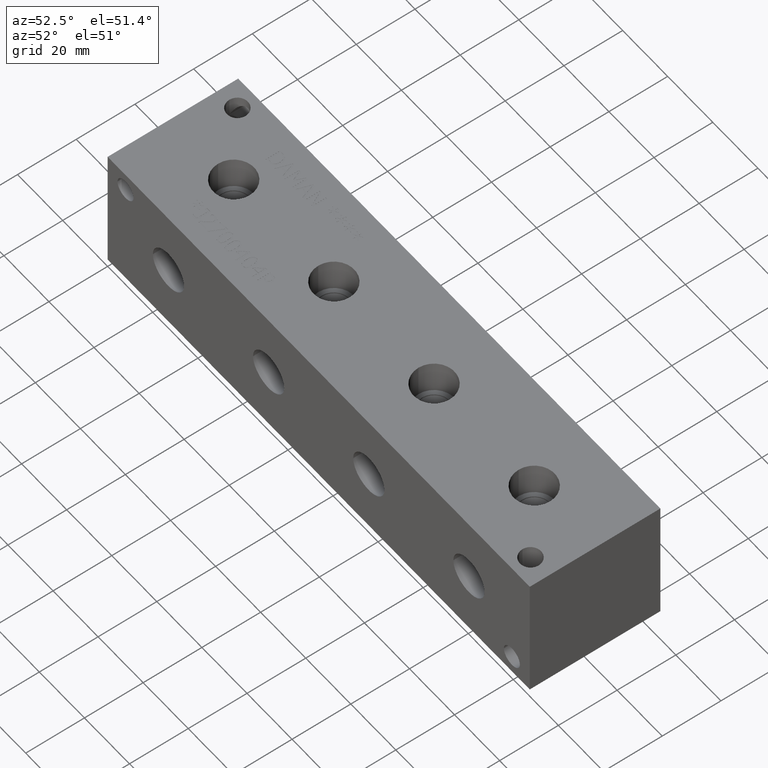
[diagram: clean part render]
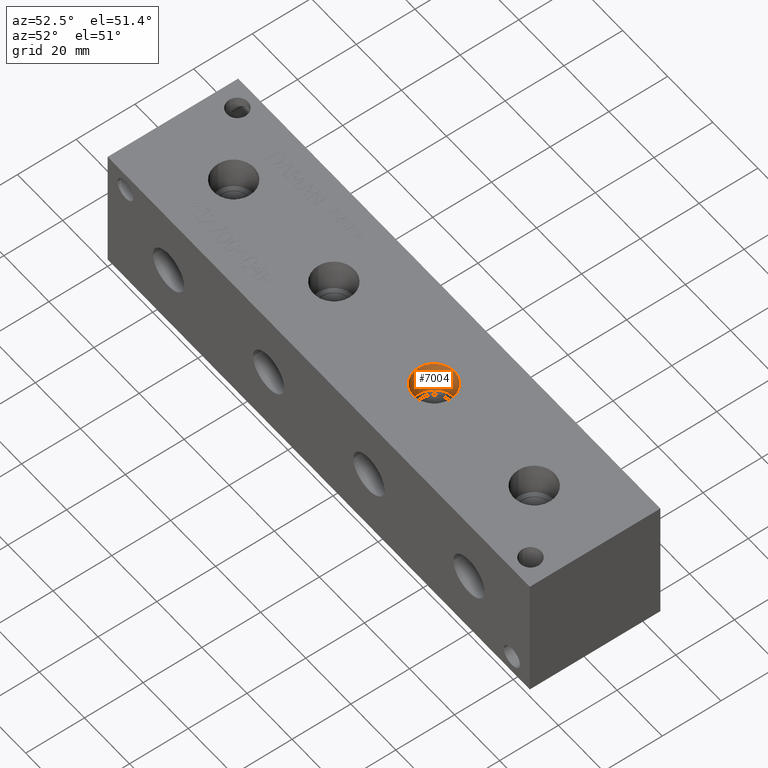
[diagram: same view with one face highlighted and labeled with its STEP entity id]
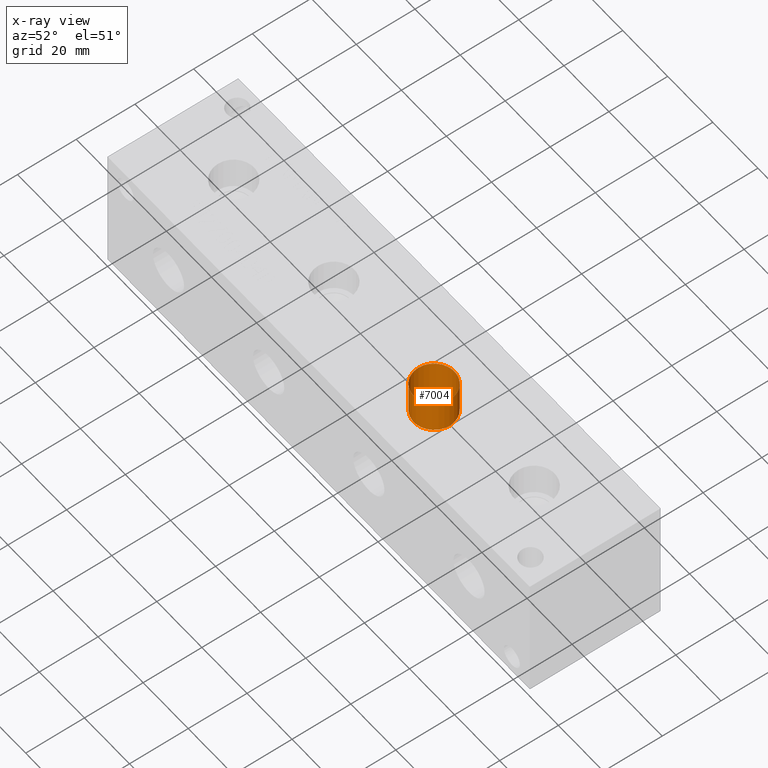
[diagram: x-ray of the same camera — body ghosted, the highlighted face saturated]
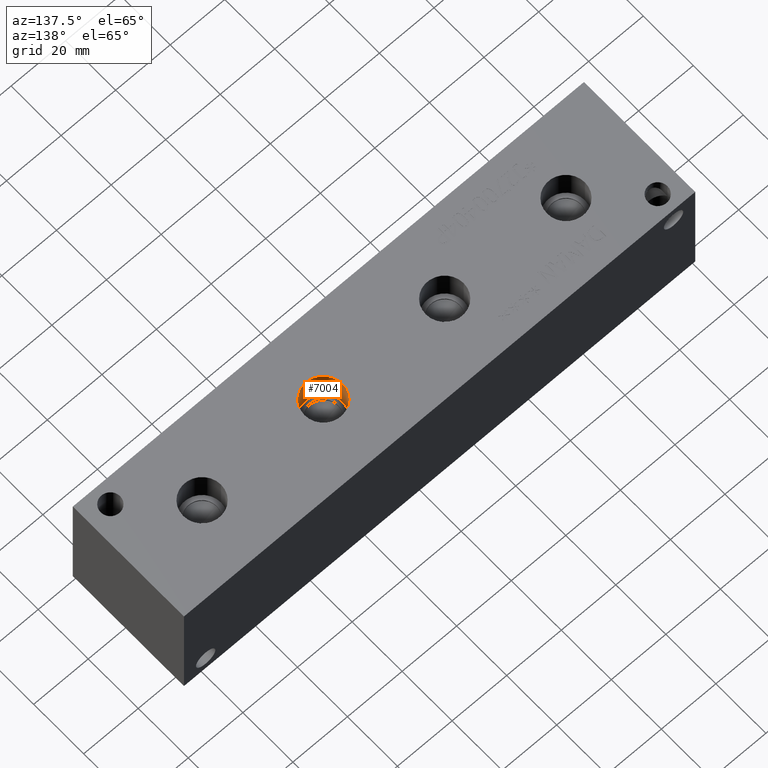
[diagram: same view with one face highlighted and labeled with its STEP entity id]
A machine part, auxiliary view. The second image highlights one B-rep face of the part: STEP entity #7004.
The next image is the same camera in x-ray: the body ghosted, the highlighted face saturated — about 0% of this face is hidden behind the body in this view.
A second angle (auxiliary view) of the same face is appended — the face is thin or edge-on in the first view.
In plain terms, the highlighted cylindrical surface (bore or boss wall) has radius 6.9342 mm, axis along (0, 0, 1).
Its self-contained STEP definition (entity closure, byte-faithful):
#46=CYLINDRICAL_SURFACE('',#7394,6.9342);
#72=CIRCLE('',#7129,6.9342);
#73=CIRCLE('',#7130,6.9342);
#144=CIRCLE('',#7391,6.9342);
#145=CIRCLE('',#7392,6.9342);
#800=FACE_OUTER_BOUND('',#1198,.T.);
#1198=EDGE_LOOP('',(#6204,#6205,#6206,#6207,#6208,#6209));
#1931=LINE('',#11698,#2646);
#2646=VECTOR('',#8841,6.9342);
#3079=VERTEX_POINT('',#10544);
#3080=VERTEX_POINT('',#10545);
#3426=VERTEX_POINT('',#11691);
#3427=VERTEX_POINT('',#11692);
#3863=EDGE_CURVE('',#3079,#3080,#72,.T.);
#3864=EDGE_CURVE('',#3080,#3079,#73,.T.);
#4369=EDGE_CURVE('',#3426,#3427,#144,.T.);
#4370=EDGE_CURVE('',#3427,#3426,#145,.T.);
#4372=EDGE_CURVE('',#3080,#3427,#1931,.T.);
#6204=ORIENTED_EDGE('',*,*,#3863,.F.);
#6205=ORIENTED_EDGE('',*,*,#3864,.F.);
#6206=ORIENTED_EDGE('',*,*,#4372,.T.);
#6207=ORIENTED_EDGE('',*,*,#4369,.F.);
#6208=ORIENTED_EDGE('',*,*,#4370,.F.);
#6209=ORIENTED_EDGE('',*,*,#4372,.F.);
#7004=ADVANCED_FACE('',(#800),#46,.F.);
#7129=AXIS2_PLACEMENT_3D('',#10546,#7899,#7900);
#7130=AXIS2_PLACEMENT_3D('',#10547,#7901,#7902);
#7391=AXIS2_PLACEMENT_3D('',#11693,#8833,#8834);
#7392=AXIS2_PLACEMENT_3D('',#11694,#8835,#8836);
#7394=AXIS2_PLACEMENT_3D('',#11697,#8839,#8840);
#7899=DIRECTION('center_axis',(0.,0.,-1.));
#7900=DIRECTION('ref_axis',(1.,0.,0.));
#7901=DIRECTION('center_axis',(0.,0.,-1.));
#7902=DIRECTION('ref_axis',(1.,0.,0.));
#8833=DIRECTION('center_axis',(0.,0.,1.));
#8834=DIRECTION('ref_axis',(1.,0.,0.));
#8835=DIRECTION('center_axis',(0.,0.,1.));
#8836=DIRECTION('ref_axis',(1.,0.,0.));
#8839=DIRECTION('center_axis',(0.,0.,1.));
#8840=DIRECTION('ref_axis',(1.,0.,0.));
#8841=DIRECTION('',(0.,0.,-1.));
#10544=CARTESIAN_POINT('',(122.809,22.225,44.45));
#10545=CARTESIAN_POINT('',(108.9406,22.225,44.45));
#10546=CARTESIAN_POINT('Origin',(115.8748,22.225,44.45));
#10547=CARTESIAN_POINT('Origin',(115.8748,22.225,44.45));
#11691=CARTESIAN_POINT('',(122.809,22.225,33.0454));
#11692=CARTESIAN_POINT('',(108.9406,22.225,33.0454));
#11693=CARTESIAN_POINT('Origin',(115.8748,22.225,33.0454));
#11694=CARTESIAN_POINT('Origin',(115.8748,22.225,33.0454));
#11697=CARTESIAN_POINT('Origin',(115.8748,22.225,38.7477));
#11698=CARTESIAN_POINT('',(108.9406,22.225,38.7477));